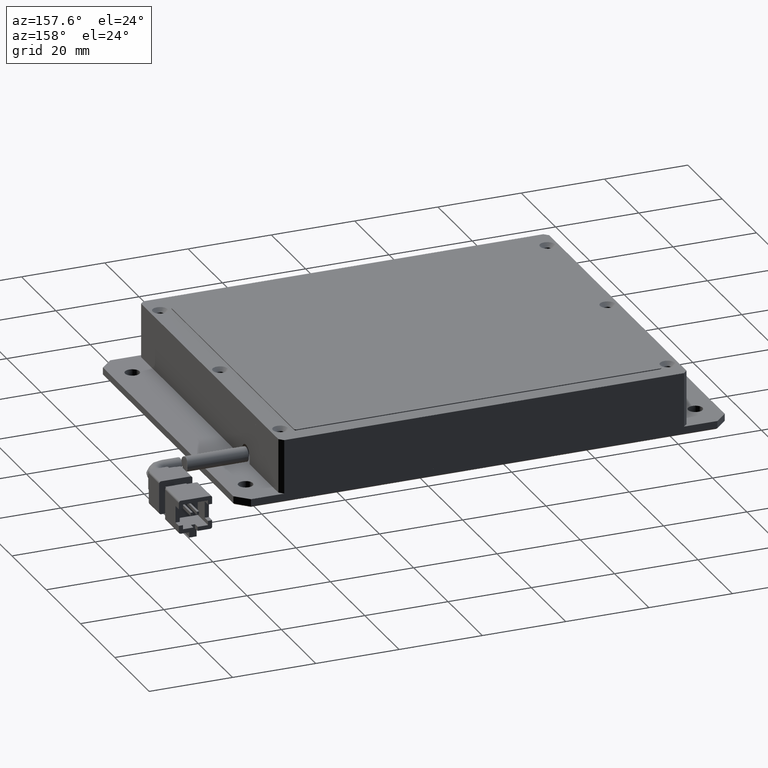
[diagram: clean part render]
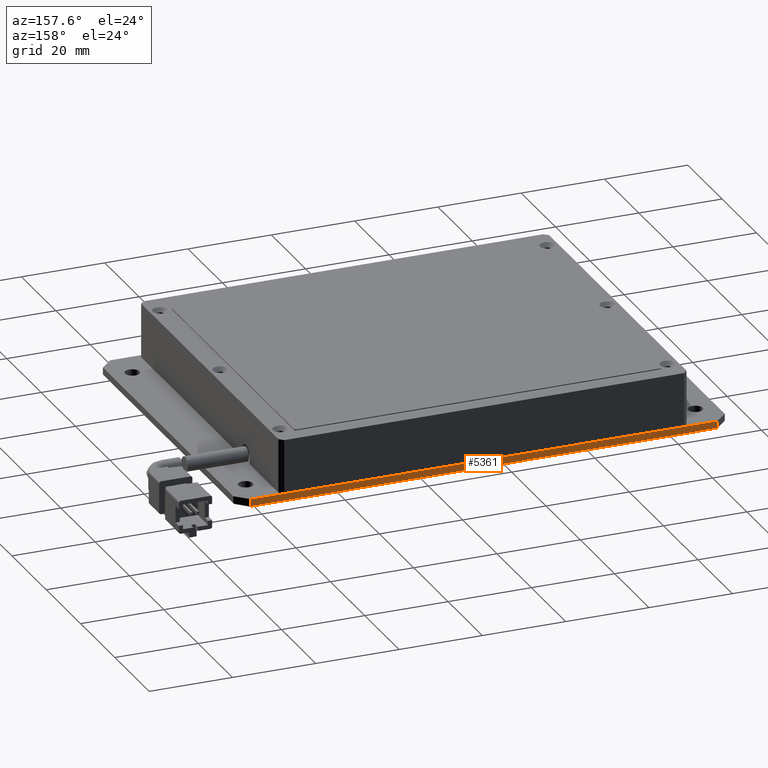
[diagram: same view with one face highlighted and labeled with its STEP entity id]
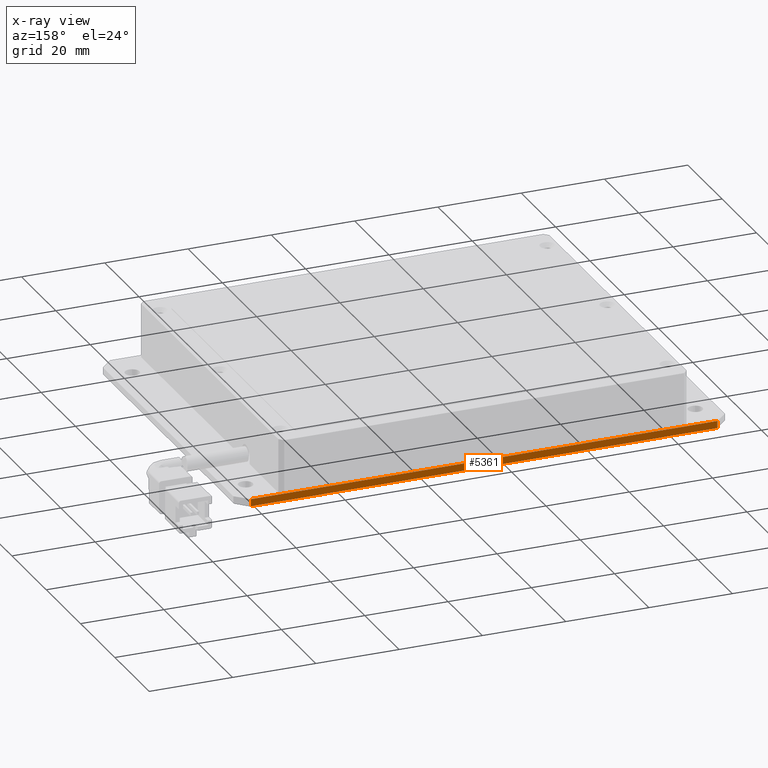
[diagram: x-ray of the same camera — body ghosted, the highlighted face saturated]
A machine part, auxiliary view. The second image highlights one B-rep face of the part: STEP entity #5361.
The next image is the same camera in x-ray: the body ghosted, the highlighted face saturated — about 0% of this face is hidden behind the body in this view.
In plain terms, the highlighted planar face has unit normal (-0, -1, 0).
Its self-contained STEP definition (entity closure, byte-faithful):
#1125 = VERTEX_POINT ( 'NONE', #7827 ) ;
#1188 = LINE ( 'NONE', #7986, #4747 ) ;
#1388 = DIRECTION ( 'NONE',  ( 1.000000000000000000, -5.551115123125781500E-017, -0.0000000000000000000 ) ) ;
#1409 = EDGE_LOOP ( 'NONE', ( #10459, #5926, #8691, #3293 ) ) ;
#2871 = LINE ( 'NONE', #7177, #6311 ) ;
#2951 = VERTEX_POINT ( 'NONE', #11739 ) ;
#3293 = ORIENTED_EDGE ( 'NONE', *, *, #11899, .T. ) ;
#4223 = DIRECTION ( 'NONE',  ( 0.0000000000000000000, 0.0000000000000000000, -1.000000000000000000 ) ) ;
#4227 = AXIS2_PLACEMENT_3D ( 'NONE', #6232, #15173, #7517 ) ;
#4570 = DIRECTION ( 'NONE',  ( -1.000000000000000000, 5.551115123125781500E-017, -0.0000000000000000000 ) ) ;
#4747 = VECTOR ( 'NONE', #4223, 1000.000000000000000 ) ;
#5043 = EDGE_CURVE ( 'NONE', #1125, #2951, #8196, .T. ) ;
#5100 = DIRECTION ( 'NONE',  ( -0.0000000000000000000, -0.0000000000000000000, 1.000000000000000000 ) ) ;
#5361 = ADVANCED_FACE ( 'NONE', ( #7582 ), #8739, .F. ) ;
#5926 = ORIENTED_EDGE ( 'NONE', *, *, #7830, .T. ) ;
#6232 = CARTESIAN_POINT ( 'NONE',  ( 68.00152730049634900, 45.85299732722419500, -2.000000000004485300 ) ) ;
#6311 = VECTOR ( 'NONE', #4570, 1000.000000000000000 ) ;
#6713 = CARTESIAN_POINT ( 'NONE',  ( 68.00152730049634900, 45.85299732722419500, -1.700000000004504400 ) ) ;
#7177 = CARTESIAN_POINT ( 'NONE',  ( 68.00152730049634900, 45.85299732722419500, -4.485127547138034700E-012 ) ) ;
#7517 = DIRECTION ( 'NONE',  ( -0.0000000000000000000, 0.0000000000000000000, 1.000000000000000000 ) ) ;
#7582 = FACE_OUTER_BOUND ( 'NONE', #1409, .T. ) ;
#7827 = CARTESIAN_POINT ( 'NONE',  ( -46.99847269950366500, 45.85299732722418000, -1.700000000004505000 ) ) ;
#7830 = EDGE_CURVE ( 'NONE', #1125, #14645, #16344, .T. ) ;
#7986 = CARTESIAN_POINT ( 'NONE',  ( 65.00152730049634900, 45.85299732722419500, -2.000000000004485300 ) ) ;
#8157 = EDGE_CURVE ( 'NONE', #11186, #14645, #2871, .T. ) ;
#8196 = LINE ( 'NONE', #6713, #11189 ) ;
#8691 = ORIENTED_EDGE ( 'NONE', *, *, #8157, .F. ) ;
#8739 = PLANE ( 'NONE',  #4227 ) ;
#8787 = CARTESIAN_POINT ( 'NONE',  ( -46.99847269950363700, 45.85299732722418000, -4.485127547138034700E-012 ) ) ;
#10459 = ORIENTED_EDGE ( 'NONE', *, *, #5043, .F. ) ;
#11186 = VERTEX_POINT ( 'NONE', #12513 ) ;
#11189 = VECTOR ( 'NONE', #1388, 1000.000000000000000 ) ;
#11411 = CARTESIAN_POINT ( 'NONE',  ( -46.99847269950363700, 45.85299732722419500, -2.000000000004485300 ) ) ;
#11739 = CARTESIAN_POINT ( 'NONE',  ( 65.00152730049634900, 45.85299732722419500, -1.700000000004504400 ) ) ;
#11899 = EDGE_CURVE ( 'NONE', #11186, #2951, #1188, .T. ) ;
#12513 = CARTESIAN_POINT ( 'NONE',  ( 65.00152730049634900, 45.85299732722419500, -4.485127547138034700E-012 ) ) ;
#13293 = VECTOR ( 'NONE', #5100, 1000.000000000000000 ) ;
#14645 = VERTEX_POINT ( 'NONE', #8787 ) ;
#15173 = DIRECTION ( 'NONE',  ( -5.551115123125781500E-017, -1.000000000000000000, 0.0000000000000000000 ) ) ;
#16344 = LINE ( 'NONE', #11411, #13293 ) ;